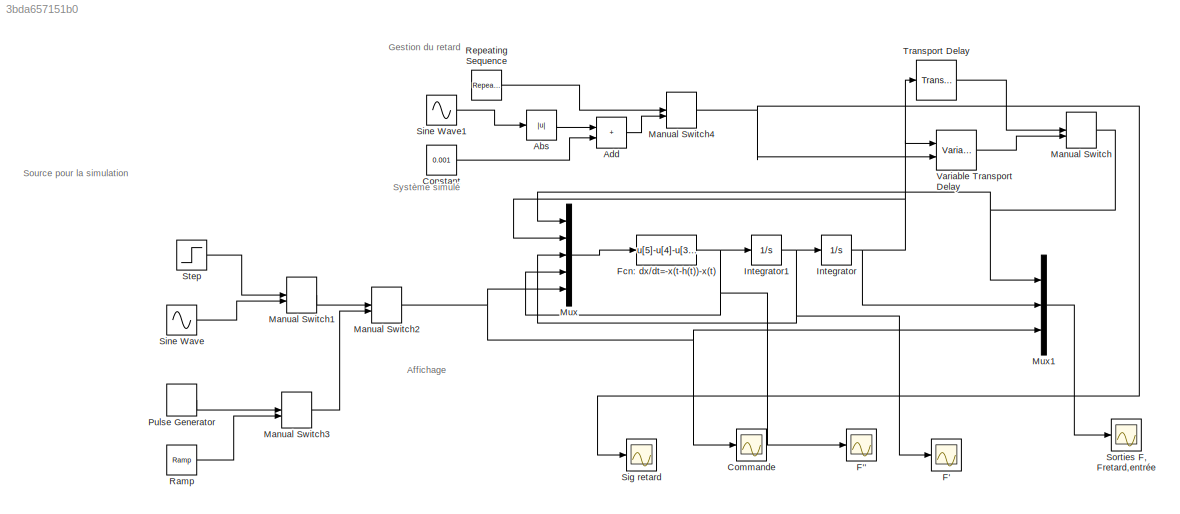
MODEL slx_3bda657151b0
KIND model
CONFIG AbsTol = auto
CONFIG EnableMultiTasking = off
CONFIG FixedStep = auto
CONFIG MaxStep = auto
CONFIG MinStep = auto
CONFIG RelTol = 1e-3
CONFIG SampleTimeConstraint = Unconstrained
CONFIG SolverName = VariableStepAuto
CONFIG StartTime = 0.0
CONFIG StopTime = 100
BLOCK [Abs] Abs
  SaturateOnIntegerOverflow = off
BLOCK [Sum] Add
  IconShape = rectangular
  Ports = [2, 1]
BLOCK [Scope] Commande
  Floating = off
  NumInputPorts = 1
  Ports = [1]
  ScopeSpecificationString = Simulink.scopes.TimeScopeBlockCfg('CurrentConfiguration', extmgr.ConfigurationSet(extmgr.Configuration('Core','General UI',true),extmgr.Configuration('Core','Source UI',true),extmgr.Configuration('Sources','WiredSimulink',true,'DataLoggingVariableName','ScopeData1'),extmgr.Configuration('Visuals','Time Domain',true,'SerializedDisplays',{struct('MinYLimReal','-1.25','MaxYLimReal','11.25','YLabelRea...<+1388ch>
BLOCK [Constant] Constant
  Value = 0.001
BLOCK [Scope] F'
  Floating = off
  NumInputPorts = 1
  Ports = [1]
  ScopeSpecificationString = Simulink.scopes.TimeScopeBlockCfg('CurrentConfiguration', extmgr.ConfigurationSet(extmgr.Configuration('Core','General UI',true),extmgr.Configuration('Core','Source UI',true),extmgr.Configuration('Sources','WiredSimulink',true,'DataLoggingVariableName','ScopeData1'),extmgr.Configuration('Visuals','Time Domain',true,'SerializedDisplays',{struct('MinYLimReal','-6.14133','MaxYLimReal','5.58005','YLab...<+1399ch>
BLOCK [Scope] F''
  Floating = off
  NumInputPorts = 1
  Ports = [1]
  ScopeSpecificationString = Simulink.scopes.TimeScopeBlockCfg('CurrentConfiguration', extmgr.ConfigurationSet(extmgr.Configuration('Core','General UI',true),extmgr.Configuration('Core','Source UI',true),extmgr.Configuration('Sources','WiredSimulink',true,'DataLoggingVariableName','ScopeData1'),extmgr.Configuration('Visuals','Time Domain',true,'SerializedDisplays',{struct('MinYLimReal','-6.90789','MaxYLimReal','6.3231','YLabe...<+1412ch>
BLOCK [Fcn] Fcn: dx//dt=-x(t-h(t))-x(t)
  Expr = u[5]-u[4]-u[3]-u[2]-u[1]
BLOCK [Integrator] Integrator
  Ports = [1, 1]
BLOCK [Integrator] Integrator1
  Ports = [1, 1]
BLOCK [ManualSwitch] Manual Switch
  CurrentSetting = 0
BLOCK [ManualSwitch] Manual Switch1
BLOCK [ManualSwitch] Manual Switch2
BLOCK [ManualSwitch] Manual Switch3
  CurrentSetting = 0
BLOCK [ManualSwitch] Manual Switch4
BLOCK [Mux] Mux
  DisplayOption = bar
  Inputs = 5
  Ports = [5, 1]
BLOCK [Mux] Mux1
  DisplayOption = bar
  Inputs = 3
  Ports = [3, 1]
BLOCK [DiscretePulseGenerator] Pulse Generator
  Amplitude = 10
  Period = 10
  PhaseDelay = 1
  Ports = [0, 1]
  PulseType = Time based
  PulseWidth = 75
BLOCK [Reference] Ramp  REF=simulink/Sources/Ramp
  Ports = [0, 1]
  SourceBlock = simulink/Sources/Ramp
  SourceProductBaseCode = SL
  SourceType = Ramp
BLOCK [Reference] Repeating Sequence  REF=simulink/Sources/Repeating
Sequence
  Ports = [0, 1]
  SourceBlock = simulink/Sources/Repeating\nSequence
  SourceProductBaseCode = SL
  SourceType = Repeating table
BLOCK [Scope] Sig retard
  Floating = off
  NumInputPorts = 1
  Ports = [1]
  ScopeSpecificationString = Simulink.scopes.TimeScopeBlockCfg('CurrentConfiguration', extmgr.ConfigurationSet(extmgr.Configuration('Core','General UI',true),extmgr.Configuration('Core','Source UI',true),extmgr.Configuration('Sources','WiredSimulink',true,'DataLoggingVariableName','ScopeData1'),extmgr.Configuration('Visuals','Time Domain',true,'SerializedDisplays',{struct('MinYLimReal','-0.26178','MaxYLimReal','3.35598','YLab...<+1450ch>
BLOCK [Sin] Sine Wave
  Amplitude = 10
  Ports = [0, 1]
  SampleTime = 0
BLOCK [Sin] Sine Wave1
  Amplitude = 2
  Frequency = 0.3*2*pi
  Offset = 1
  Ports = [0, 1]
  SampleTime = 0.01
  Samples = 100
  SineType = Sample based
BLOCK [Scope] Sorties F, Fretard,entrée
  Floating = off
  NumInputPorts = 1
  Ports = [1]
  ScopeSpecificationString = Simulink.scopes.TimeScopeBlockCfg('CurrentConfiguration', extmgr.ConfigurationSet(extmgr.Configuration('Core','General UI',true),extmgr.Configuration('Core','Source UI',true),extmgr.Configuration('Sources','WiredSimulink',true,'DataLoggingVariableName','ScopeData2'),extmgr.Configuration('Visuals','Time Domain',true,'SerializedDisplays',{struct('MinYLimReal','-21.39717','MaxYLimReal','56.07083','YL...<+1485ch>
  Tag = Scope retard
BLOCK [Step] Step
  After = 10
  SampleTime = 0
BLOCK [TransportDelay] Transport Delay
  DelayTime = 5
  Ports = [1, 1]
BLOCK [VariableTransportDelay] Variable Transport Delay
  MaximumDelay = 15
  Ports = [2, 1]
  VariableDelayType = Variable transport delay
ANNOTATION (root): Affichage
ANNOTATION (root): Gestion du retard
ANNOTATION (root): Source pour la simulation
ANNOTATION (root): Système simulé
LINE Abs:1 -> Add:1
LINE Add:1 -> Manual Switch4:2
LINE Constant:1 -> Add:2
NET Fcn: dx//dt=-x(t-h(t))-x(t):1 -> F'':1, Integrator1:1, Mux:4
NET Integrator1:1 -> F':1, Integrator:1, Mux:3
NET Integrator:1 -> Mux1:2, Mux:2, Transport Delay:1, Variable Transport Delay:1
LINE Manual Switch1:1 -> Manual Switch2:1
NET Manual Switch2:1 -> Commande:1, Mux1:3, Mux:5
LINE Manual Switch3:1 -> Manual Switch2:2
NET Manual Switch4:1 -> Sig retard:1, Variable Transport Delay:2
NET Manual Switch:1 -> Mux1:1, Mux:1
LINE Mux1:1 -> Sorties F, Fretard,entrée:1
LINE Mux:1 -> Fcn: dx//dt=-x(t-h(t))-x(t):1
LINE Pulse Generator:1 -> Manual Switch3:1
LINE Ramp:1 -> Manual Switch3:2
LINE Repeating Sequence:1 -> Manual Switch4:1
LINE Sine Wave1:1 -> Abs:1
LINE Sine Wave:1 -> Manual Switch1:2
LINE Step:1 -> Manual Switch1:1
LINE Transport Delay:1 -> Manual Switch:1
LINE Variable Transport Delay:1 -> Manual Switch:2
note: NET lines group one-source signal fan-out (src -> all destinations, sorted); 1:1 wires keep LINE
